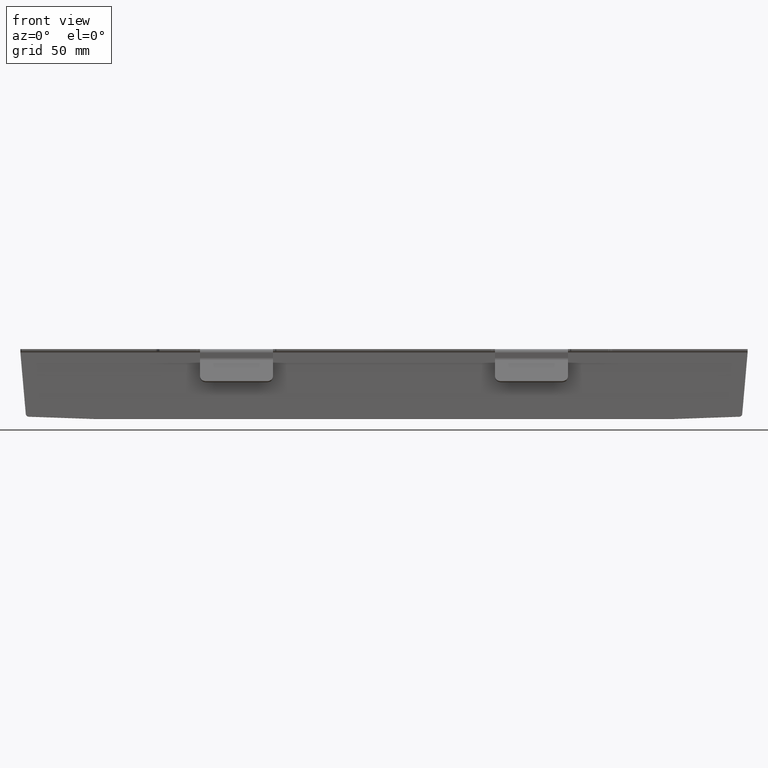
[diagram: clean part render]
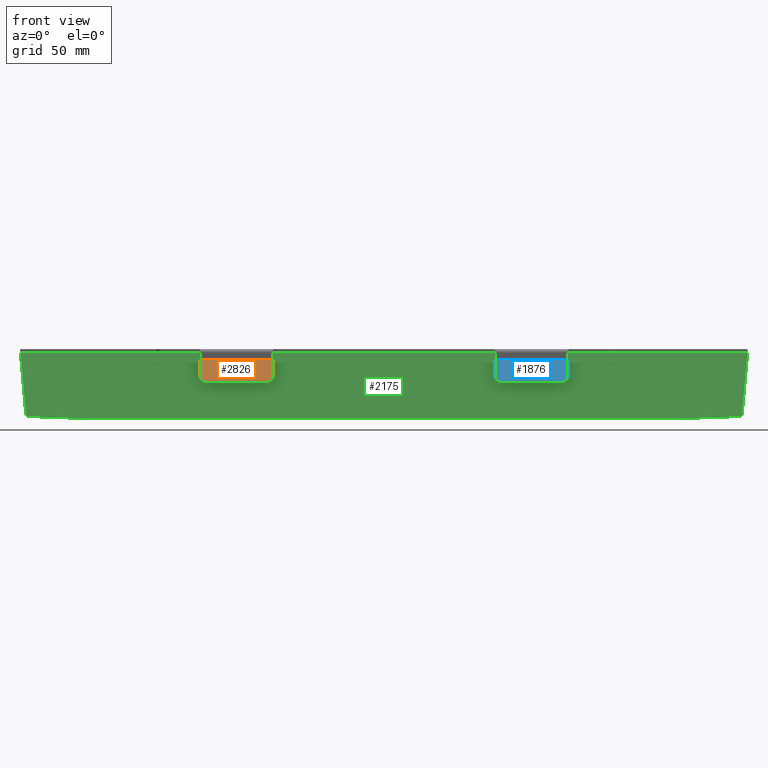
[diagram: same view with three faces highlighted in distinct colors, each labeled with its STEP entity id]
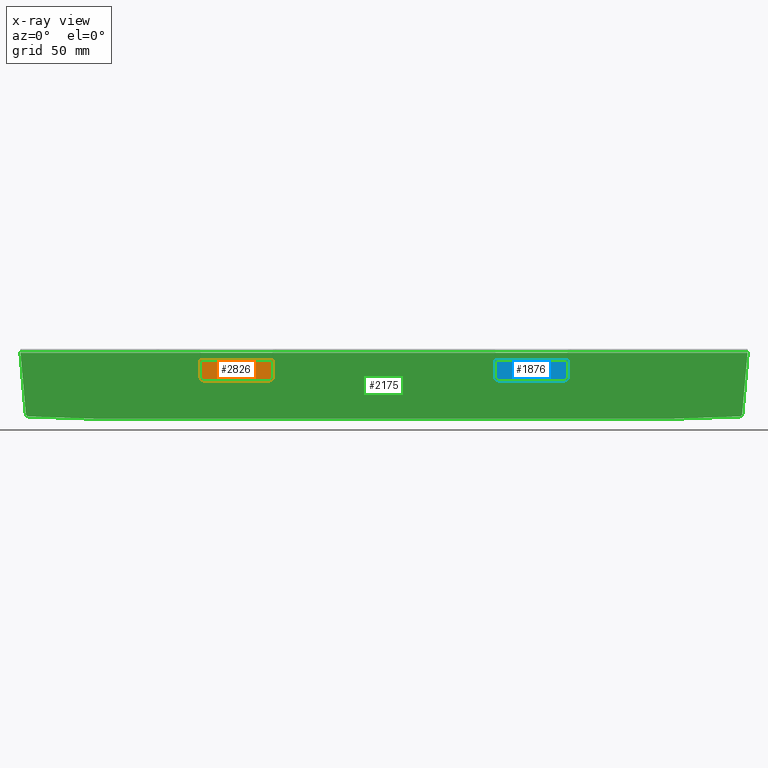
[diagram: x-ray of the same camera — body ghosted, the three highlighted faces saturated]
A machine part, front view with three faces highlighted in distinct colors.
The next image is the same camera in x-ray (body ghosted, the three faces saturated) — at least one of them is partly hidden behind the body in this view.
Their STEP definitions:

[orange] entity #2826 — the highlighted planar face has unit normal (0, -0.866, 0.5).
#59 = DIRECTION ( 'NONE',  ( -1.000000000000000000, -1.387778780781446200E-016, 8.005940437192819200E-033 ) ) ;
#64 = DIRECTION ( 'NONE',  ( 1.000000000000000000, 1.150811147108890700E-016, -4.104399812702373500E-017 ) ) ;
#70 = DIRECTION ( 'NONE',  ( 1.201851678989729500E-016, -0.8660254037844398200, 0.4999999999999979500 ) ) ;
#128 = VERTEX_POINT ( 'NONE', #2765 ) ;
#198 = EDGE_CURVE ( 'NONE', #2588, #128, #1165, .T. ) ;
#239 = ORIENTED_EDGE ( 'NONE', *, *, #198, .F. ) ;
#339 = DIRECTION ( 'NONE',  ( 1.201851678989729500E-016, -0.8660254037844399300, 0.4999999999999980000 ) ) ;
#433 = DIRECTION ( 'NONE',  ( 0.0000000000000000000, -0.4999999999999978400, -0.8660254037844399300 ) ) ;
#484 = CARTESIAN_POINT ( 'NONE',  ( -126.0000000000000000, 4.675458878502961800, -7.499999999999979600 ) ) ;
#562 = CARTESIAN_POINT ( 'NONE',  ( -76.00000000000001400, 4.675458878502958300, -7.499999999999979600 ) ) ;
#579 = CIRCLE ( 'NONE', #2739, 4.000000000000001800 ) ;
#736 = EDGE_CURVE ( 'NONE', #1291, #1024, #2575, .T. ) ;
#882 = EDGE_CURVE ( 'NONE', #2286, #128, #579, .T. ) ;
#900 = CARTESIAN_POINT ( 'NONE',  ( -76.00000000000001400, -3.672617332850319100, -21.95929214352105100 ) ) ;
#994 = VECTOR ( 'NONE', #59, 1000.000000000000000 ) ;
#1024 = VERTEX_POINT ( 'NONE', #562 ) ;
#1096 = CARTESIAN_POINT ( 'NONE',  ( -80.00000000000001400, -1.672617332850326400, -18.49519052838329000 ) ) ;
#1123 = EDGE_CURVE ( 'NONE', #2588, #2528, #2865, .T. ) ;
#1161 = CARTESIAN_POINT ( 'NONE',  ( -126.0000000000000000, -1.672617332850335300, -18.49519052838329700 ) ) ;
#1165 = LINE ( 'NONE', #2049, #994 ) ;
#1205 = DIRECTION ( 'NONE',  ( 0.0000000000000000000, -0.4999999999999978400, -0.8660254037844399300 ) ) ;
#1291 = VERTEX_POINT ( 'NONE', #484 ) ;
#1352 = ORIENTED_EDGE ( 'NONE', *, *, #1123, .T. ) ;
#1399 = DIRECTION ( 'NONE',  ( 0.0000000000000000000, -0.4999999999999978900, -0.8660254037844397100 ) ) ;
#1484 = ORIENTED_EDGE ( 'NONE', *, *, #1861, .F. ) ;
#1580 = CARTESIAN_POINT ( 'NONE',  ( -126.0000000000000000, 4.675458878502961800, -7.499999999999980500 ) ) ;
#1600 = CARTESIAN_POINT ( 'NONE',  ( -8.890267982502532200E-016, 6.406113211715560100, -4.502418764536536800 ) ) ;
#1725 = AXIS2_PLACEMENT_3D ( 'NONE', #1600, #70, #1399 ) ;
#1743 = DIRECTION ( 'NONE',  ( 6.162975822039153400E-033, 0.4999999999999978900, 0.8660254037844397100 ) ) ;
#1757 = DIRECTION ( 'NONE',  ( 6.162975822039153400E-033, -0.4999999999999978900, -0.8660254037844397100 ) ) ;
#1851 = ORIENTED_EDGE ( 'NONE', *, *, #736, .F. ) ;
#1861 = EDGE_CURVE ( 'NONE', #1024, #2528, #2777, .T. ) ;
#1909 = VECTOR ( 'NONE', #64, 1000.000000000000000 ) ;
#1920 = FACE_OUTER_BOUND ( 'NONE', #2058, .T. ) ;
#2047 = VECTOR ( 'NONE', #1743, 1000.000000000000200 ) ;
#2049 = CARTESIAN_POINT ( 'NONE',  ( -126.0000000000000000, -3.672617332850324900, -21.95929214352105100 ) ) ;
#2058 = EDGE_LOOP ( 'NONE', ( #2252, #2321, #239, #1352, #1484, #1851 ) ) ;
#2123 = CARTESIAN_POINT ( 'NONE',  ( -76.00000000000001400, -1.672617332850325300, -18.49519052838329000 ) ) ;
#2252 = ORIENTED_EDGE ( 'NONE', *, *, #2680, .F. ) ;
#2286 = VERTEX_POINT ( 'NONE', #1161 ) ;
#2321 = ORIENTED_EDGE ( 'NONE', *, *, #882, .T. ) ;
#2452 = CARTESIAN_POINT ( 'NONE',  ( -126.0000000000000000, 5.077382667149639600, -6.803847577293355500 ) ) ;
#2490 = CARTESIAN_POINT ( 'NONE',  ( -122.0000000000000000, -1.672617332850333800, -18.49519052838329400 ) ) ;
#2500 = PLANE ( 'NONE',  #1725 ) ;
#2528 = VERTEX_POINT ( 'NONE', #2123 ) ;
#2575 = LINE ( 'NONE', #1580, #1909 ) ;
#2588 = VERTEX_POINT ( 'NONE', #2797 ) ;
#2636 = DIRECTION ( 'NONE',  ( 1.201851678989729500E-016, -0.8660254037844399300, 0.4999999999999980000 ) ) ;
#2667 = LINE ( 'NONE', #2452, #2047 ) ;
#2680 = EDGE_CURVE ( 'NONE', #2286, #1291, #2667, .T. ) ;
#2739 = AXIS2_PLACEMENT_3D ( 'NONE', #2490, #339, #1205 ) ;
#2765 = CARTESIAN_POINT ( 'NONE',  ( -122.0000000000000000, -3.672617332850324400, -21.95929214352105100 ) ) ;
#2777 = LINE ( 'NONE', #900, #2813 ) ;
#2778 = AXIS2_PLACEMENT_3D ( 'NONE', #1096, #2636, #433 ) ;
#2797 = CARTESIAN_POINT ( 'NONE',  ( -80.00000000000001400, -3.672617332850318700, -21.95929214352105100 ) ) ;
#2813 = VECTOR ( 'NONE', #1757, 1000.000000000000200 ) ;
#2826 = ADVANCED_FACE ( 'NONE', ( #1920 ), #2500, .T. ) ;
#2865 = CIRCLE ( 'NONE', #2778, 4.000000000000001800 ) ;

[blue] entity #1876 — the highlighted planar face has unit normal (-0, -0.866, 0.5).
#68 = EDGE_LOOP ( 'NONE', ( #2422, #1775, #1143, #624, #1698, #2149 ) ) ;
#185 = AXIS2_PLACEMENT_3D ( 'NONE', #909, #682, #2662 ) ;
#200 = VERTEX_POINT ( 'NONE', #2716 ) ;
#205 = VERTEX_POINT ( 'NONE', #2268 ) ;
#356 = CARTESIAN_POINT ( 'NONE',  ( 126.0000000000000000, -3.672617332850327100, -21.95929214352105100 ) ) ;
#379 = CARTESIAN_POINT ( 'NONE',  ( 76.00000000000001400, -3.672617332850320400, -21.95929214352105100 ) ) ;
#450 = LINE ( 'NONE', #379, #1956 ) ;
#453 = EDGE_CURVE ( 'NONE', #200, #2424, #2578, .T. ) ;
#490 = VERTEX_POINT ( 'NONE', #2615 ) ;
#518 = CARTESIAN_POINT ( 'NONE',  ( 76.00000000000001400, 4.675458878502966300, -7.499999999999978700 ) ) ;
#605 = EDGE_CURVE ( 'NONE', #205, #2424, #617, .T. ) ;
#611 = CARTESIAN_POINT ( 'NONE',  ( 76.00000000000001400, -1.672617332850329300, -18.49519052838329400 ) ) ;
#617 = CIRCLE ( 'NONE', #758, 4.000000000000000900 ) ;
#624 = ORIENTED_EDGE ( 'NONE', *, *, #605, .T. ) ;
#682 = DIRECTION ( 'NONE',  ( -1.201851678989729800E-016, -0.8660254037844399300, 0.4999999999999978900 ) ) ;
#741 = DIRECTION ( 'NONE',  ( -0.0000000000000000000, 0.4999999999999978400, 0.8660254037844398200 ) ) ;
#758 = AXIS2_PLACEMENT_3D ( 'NONE', #1521, #1319, #2416 ) ;
#761 = VERTEX_POINT ( 'NONE', #1798 ) ;
#762 = VECTOR ( 'NONE', #2693, 1000.000000000000000 ) ;
#874 = EDGE_CURVE ( 'NONE', #1190, #761, #1472, .T. ) ;
#909 = CARTESIAN_POINT ( 'NONE',  ( 8.890267982502528300E-016, 6.406113211715557500, -4.502418764536534100 ) ) ;
#962 = VECTOR ( 'NONE', #2809, 1000.000000000000100 ) ;
#1143 = ORIENTED_EDGE ( 'NONE', *, *, #2533, .F. ) ;
#1190 = VERTEX_POINT ( 'NONE', #611 ) ;
#1206 = CARTESIAN_POINT ( 'NONE',  ( 80.00000000000001400, -1.672617332850328700, -18.49519052838329400 ) ) ;
#1307 = VECTOR ( 'NONE', #741, 1000.000000000000100 ) ;
#1314 = LINE ( 'NONE', #518, #762 ) ;
#1319 = DIRECTION ( 'NONE',  ( -1.201851678989729500E-016, -0.8660254037844399300, 0.4999999999999978900 ) ) ;
#1472 = LINE ( 'NONE', #2521, #1307 ) ;
#1518 = FACE_OUTER_BOUND ( 'NONE', #68, .T. ) ;
#1521 = CARTESIAN_POINT ( 'NONE',  ( 122.0000000000000000, -1.672617332850332600, -18.49519052838329000 ) ) ;
#1553 = PLANE ( 'NONE',  #185 ) ;
#1628 = CARTESIAN_POINT ( 'NONE',  ( 126.0000000000000000, -1.672617332850334000, -18.49519052838329000 ) ) ;
#1698 = ORIENTED_EDGE ( 'NONE', *, *, #453, .F. ) ;
#1775 = ORIENTED_EDGE ( 'NONE', *, *, #2403, .T. ) ;
#1798 = CARTESIAN_POINT ( 'NONE',  ( 76.00000000000002800, 4.675458878502965400, -7.499999999999976900 ) ) ;
#1876 = ADVANCED_FACE ( 'NONE', ( #1518 ), #1553, .T. ) ;
#1888 = AXIS2_PLACEMENT_3D ( 'NONE', #1206, #2747, #2530 ) ;
#1956 = VECTOR ( 'NONE', #2104, 1000.000000000000000 ) ;
#2104 = DIRECTION ( 'NONE',  ( -1.000000000000000000, 1.387778780781446200E-016, -1.232595164407825500E-032 ) ) ;
#2149 = ORIENTED_EDGE ( 'NONE', *, *, #2830, .F. ) ;
#2268 = CARTESIAN_POINT ( 'NONE',  ( 122.0000000000000000, -3.672617332850327100, -21.95929214352105100 ) ) ;
#2403 = EDGE_CURVE ( 'NONE', #1190, #490, #2472, .T. ) ;
#2416 = DIRECTION ( 'NONE',  ( 0.0000000000000000000, -0.4999999999999978400, -0.8660254037844400400 ) ) ;
#2422 = ORIENTED_EDGE ( 'NONE', *, *, #874, .F. ) ;
#2424 = VERTEX_POINT ( 'NONE', #1628 ) ;
#2472 = CIRCLE ( 'NONE', #1888, 4.000000000000001800 ) ;
#2521 = CARTESIAN_POINT ( 'NONE',  ( 76.00000000000001400, 5.077382667149643100, -6.803847577293353800 ) ) ;
#2530 = DIRECTION ( 'NONE',  ( 0.0000000000000000000, -0.4999999999999978400, -0.8660254037844399300 ) ) ;
#2533 = EDGE_CURVE ( 'NONE', #205, #490, #450, .T. ) ;
#2578 = LINE ( 'NONE', #356, #962 ) ;
#2615 = CARTESIAN_POINT ( 'NONE',  ( 80.00000000000001400, -3.672617332850320900, -21.95929214352105100 ) ) ;
#2662 = DIRECTION ( 'NONE',  ( 0.0000000000000000000, -0.4999999999999978400, -0.8660254037844398200 ) ) ;
#2693 = DIRECTION ( 'NONE',  ( 1.000000000000000000, -1.387778780781445900E-016, 0.0000000000000000000 ) ) ;
#2716 = CARTESIAN_POINT ( 'NONE',  ( 126.0000000000000000, 4.675458878502954700, -7.499999999999976900 ) ) ;
#2747 = DIRECTION ( 'NONE',  ( -1.201851678989729500E-016, -0.8660254037844399300, 0.4999999999999978900 ) ) ;
#2809 = DIRECTION ( 'NONE',  ( 1.232595164407830800E-032, -0.4999999999999978400, -0.8660254037844398200 ) ) ;
#2830 = EDGE_CURVE ( 'NONE', #761, #200, #1314, .T. ) ;

[green] entity #2175 — the highlighted planar face has unit normal (0, -0.9962, 0.0872).
#46 = LINE ( 'NONE', #1087, #640 ) ;
#119 = LINE ( 'NONE', #1499, #2674 ) ;
#168 = EDGE_CURVE ( 'NONE', #1865, #547, #251, .T. ) ;
#186 = DIRECTION ( 'NONE',  ( 0.0000000000000000000, -0.9961946980917458800, 0.08715574274765482100 ) ) ;
#251 = LINE ( 'NONE', #2548, #1915 ) ;
#253 = DIRECTION ( 'NONE',  ( 0.0000000000000000000, -0.08715574274765434900, -0.9961946980917459900 ) ) ;
#342 = AXIS2_PLACEMENT_3D ( 'NONE', #541, #1197, #1414 ) ;
#410 = AXIS2_PLACEMENT_3D ( 'NONE', #657, #2852, #253 ) ;
#455 = CARTESIAN_POINT ( 'NONE',  ( -249.0000000000000000, 16.37357736524137800, -2.587155742747659500 ) ) ;
#463 = VERTEX_POINT ( 'NONE', #2144 ) ;
#501 = CIRCLE ( 'NONE', #342, 2.000000000000000900 ) ;
#541 = CARTESIAN_POINT ( 'NONE',  ( 198.9650898701433200, 12.59897619022302500, -45.73104459527351700 ) ) ;
#547 = VERTEX_POINT ( 'NONE', #2820 ) ;
#557 = ORIENTED_EDGE ( 'NONE', *, *, #168, .T. ) ;
#563 = LINE ( 'NONE', #1903, #1386 ) ;
#585 = ORIENTED_EDGE ( 'NONE', *, *, #898, .T. ) ;
#601 = EDGE_CURVE ( 'NONE', #2312, #1608, #992, .T. ) ;
#636 = EDGE_LOOP ( 'NONE', ( #557, #780, #2806, #1900, #2628, #585, #1875, #769, #2784, #2168 ) ) ;
#640 = VECTOR ( 'NONE', #2821, 1000.000000000000100 ) ;
#657 = CARTESIAN_POINT ( 'NONE',  ( -198.9650898701433200, 12.59897619022302500, -45.73104459527352400 ) ) ;
#769 = ORIENTED_EDGE ( 'NONE', *, *, #1106, .T. ) ;
#780 = ORIENTED_EDGE ( 'NONE', *, *, #2510, .T. ) ;
#800 = LINE ( 'NONE', #2480, #2800 ) ;
#802 = CARTESIAN_POINT ( 'NONE',  ( 245.3312998125535100, 12.71883768961919300, -44.36102138808794100 ) ) ;
#841 = DIRECTION ( 'NONE',  ( 0.0000000000000000000, -0.08715574274765482100, -0.9961946980917458800 ) ) ;
#872 = CARTESIAN_POINT ( 'NONE',  ( 243.3389104163700000, 12.73402993660698000, -44.18737321042100100 ) ) ;
#898 = EDGE_CURVE ( 'NONE', #1404, #463, #501, .T. ) ;
#952 = CARTESIAN_POINT ( 'NONE',  ( -199.0348888635483900, 12.42477089057494200, -47.72222028166941500 ) ) ;
#992 = CIRCLE ( 'NONE', #410, 2.000000000000000900 ) ;
#1051 = CARTESIAN_POINT ( 'NONE',  ( 0.0000000000000000000, 16.48211880371653800, -1.346521423959579300 ) ) ;
#1087 = CARTESIAN_POINT ( 'NONE',  ( 247.2166936555520400, 14.59705703982909100, -22.89287597912954200 ) ) ;
#1106 = EDGE_CURVE ( 'NONE', #1431, #2005, #2721, .T. ) ;
#1169 = DIRECTION ( 'NONE',  ( 1.000000000000000000, -1.209765342808851600E-018, -1.382768114237371700E-017 ) ) ;
#1197 = DIRECTION ( 'NONE',  ( 0.0000000000000000000, -0.9961946980917457700, 0.08715574274765480700 ) ) ;
#1251 = LINE ( 'NONE', #1290, #2555 ) ;
#1290 = CARTESIAN_POINT ( 'NONE',  ( 1.866100699968819200, 11.82467869243448500, -54.58130549289417400 ) ) ;
#1321 = FACE_OUTER_BOUND ( 'NONE', #636, .T. ) ;
#1386 = VECTOR ( 'NONE', #1684, 1000.000000000000000 ) ;
#1404 = VERTEX_POINT ( 'NONE', #2456 ) ;
#1406 = DIRECTION ( 'NONE',  ( 0.0000000000000000000, -0.9961946980917457700, 0.08715574274765480700 ) ) ;
#1414 = DIRECTION ( 'NONE',  ( 0.0000000000000000000, -0.08715574274765434900, -0.9961946980917459900 ) ) ;
#1431 = VERTEX_POINT ( 'NONE', #2251 ) ;
#1454 = DIRECTION ( 'NONE',  ( 0.08715574274765833200, -0.08682408883346180700, -0.9924038765061041800 ) ) ;
#1458 = CARTESIAN_POINT ( 'NONE',  ( 249.0000000000000600, 16.37357736524138100, -2.587155742747664400 ) ) ;
#1499 = CARTESIAN_POINT ( 'NONE',  ( -1.866100699968819000, 11.82467869243448200, -54.58130549289417400 ) ) ;
#1547 = DIRECTION ( 'NONE',  ( 0.9993908270190956500, -0.003041691556625807500, -0.03476669358110190400 ) ) ;
#1577 = AXIS2_PLACEMENT_3D ( 'NONE', #2741, #1406, #1635 ) ;
#1608 = VERTEX_POINT ( 'NONE', #2763 ) ;
#1635 = DIRECTION ( 'NONE',  ( 0.0000000000000000000, -0.08715574274765434900, -0.9961946980917459900 ) ) ;
#1655 = EDGE_CURVE ( 'NONE', #1404, #1608, #563, .T. ) ;
#1684 = DIRECTION ( 'NONE',  ( -1.000000000000000000, -0.0000000000000000000, -0.0000000000000000000 ) ) ;
#1703 = EDGE_CURVE ( 'NONE', #2595, #2005, #46, .T. ) ;
#1706 = AXIS2_PLACEMENT_3D ( 'NONE', #872, #2853, #2864 ) ;
#1735 = DIRECTION ( 'NONE',  ( -0.9993908270190956500, -0.003041691556625808000, -0.03476669358110191100 ) ) ;
#1821 = EDGE_CURVE ( 'NONE', #2203, #2312, #119, .T. ) ;
#1865 = VERTEX_POINT ( 'NONE', #455 ) ;
#1875 = ORIENTED_EDGE ( 'NONE', *, *, #2209, .F. ) ;
#1900 = ORIENTED_EDGE ( 'NONE', *, *, #601, .T. ) ;
#1903 = CARTESIAN_POINT ( 'NONE',  ( -249.0000000000000000, 12.42466470472771800, -47.72343399145700700 ) ) ;
#1915 = VECTOR ( 'NONE', #1454, 1000.000000000000200 ) ;
#1941 = PLANE ( 'NONE',  #2798 ) ;
#2005 = VERTEX_POINT ( 'NONE', #802 ) ;
#2144 = CARTESIAN_POINT ( 'NONE',  ( 199.0348888635483600, 12.42477089057494600, -47.72222028166941500 ) ) ;
#2168 = ORIENTED_EDGE ( 'NONE', *, *, #2363, .F. ) ;
#2175 = ADVANCED_FACE ( 'NONE', ( #1321 ), #1941, .T. ) ;
#2203 = VERTEX_POINT ( 'NONE', #2384 ) ;
#2209 = EDGE_CURVE ( 'NONE', #1431, #463, #1251, .T. ) ;
#2251 = CARTESIAN_POINT ( 'NONE',  ( 243.4087094097750100, 12.55982463695889900, -46.17854889681689900 ) ) ;
#2312 = VERTEX_POINT ( 'NONE', #952 ) ;
#2363 = EDGE_CURVE ( 'NONE', #1865, #2595, #800, .T. ) ;
#2384 = CARTESIAN_POINT ( 'NONE',  ( -243.4087094097750100, 12.55982463695889500, -46.17854889681689900 ) ) ;
#2456 = CARTESIAN_POINT ( 'NONE',  ( 198.9650898701433200, 12.42466470472771800, -47.72343399145700700 ) ) ;
#2480 = CARTESIAN_POINT ( 'NONE',  ( -249.0000000000000000, 16.37357736524137800, -2.587155742747656400 ) ) ;
#2510 = EDGE_CURVE ( 'NONE', #547, #2203, #2843, .T. ) ;
#2548 = CARTESIAN_POINT ( 'NONE',  ( -247.2166936555520400, 14.59705703982908700, -22.89287597912954200 ) ) ;
#2555 = VECTOR ( 'NONE', #1735, 1000.000000000000100 ) ;
#2595 = VERTEX_POINT ( 'NONE', #1458 ) ;
#2628 = ORIENTED_EDGE ( 'NONE', *, *, #1655, .F. ) ;
#2674 = VECTOR ( 'NONE', #1547, 1000.000000000000200 ) ;
#2721 = CIRCLE ( 'NONE', #1706, 2.000000000000000900 ) ;
#2741 = CARTESIAN_POINT ( 'NONE',  ( -243.3389104163699700, 12.73402993660698000, -44.18737321042100100 ) ) ;
#2763 = CARTESIAN_POINT ( 'NONE',  ( -198.9650898701433200, 12.42466470472771800, -47.72343399145700700 ) ) ;
#2784 = ORIENTED_EDGE ( 'NONE', *, *, #1703, .F. ) ;
#2798 = AXIS2_PLACEMENT_3D ( 'NONE', #1051, #186, #841 ) ;
#2800 = VECTOR ( 'NONE', #1169, 1000.000000000000000 ) ;
#2806 = ORIENTED_EDGE ( 'NONE', *, *, #1821, .T. ) ;
#2820 = CARTESIAN_POINT ( 'NONE',  ( -245.3312998125535100, 12.71883768961918900, -44.36102138808793400 ) ) ;
#2821 = DIRECTION ( 'NONE',  ( -0.08715574274765834600, -0.08682408883346180700, -0.9924038765061041800 ) ) ;
#2843 = CIRCLE ( 'NONE', #1577, 2.000000000000000900 ) ;
#2852 = DIRECTION ( 'NONE',  ( 0.0000000000000000000, -0.9961946980917457700, 0.08715574274765480700 ) ) ;
#2853 = DIRECTION ( 'NONE',  ( 0.0000000000000000000, -0.9961946980917457700, 0.08715574274765480700 ) ) ;
#2864 = DIRECTION ( 'NONE',  ( 0.0000000000000000000, -0.08715574274765434900, -0.9961946980917459900 ) ) ;